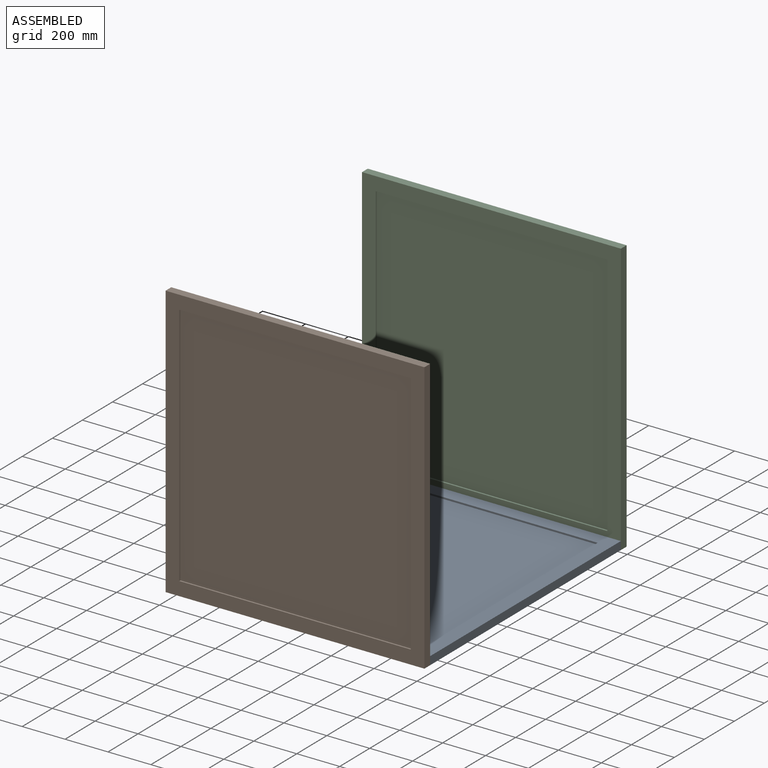
[diagram: assembled view]
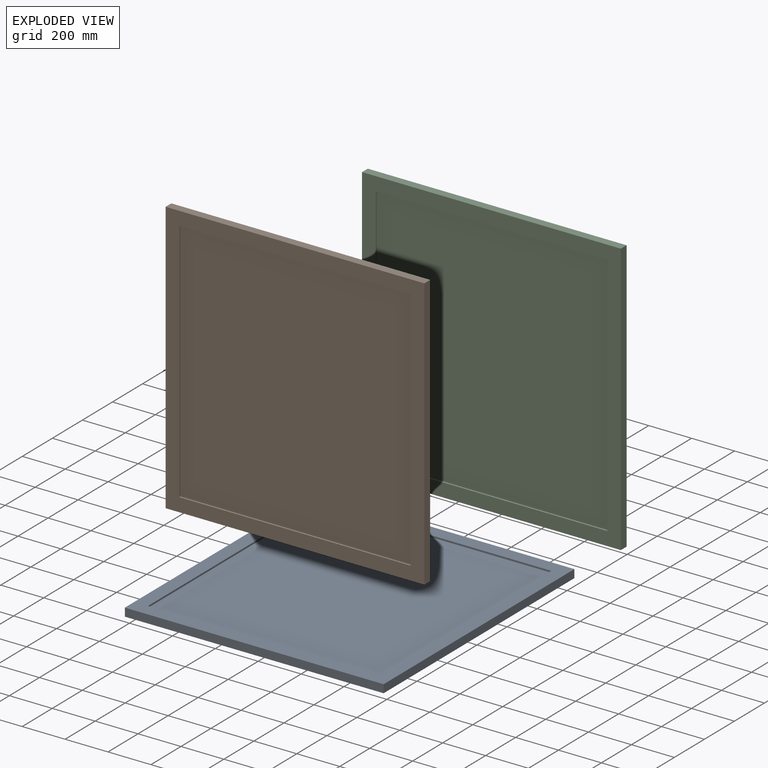
[diagram: exploded view]
GUIDED TOUR — MATED ASSEMBLY WITH SUBASSEMBLIES (Onshape document 404972811c8fb933fd3bb6b1, AutoMate assembly 404972811c8fb933fd3bb6b1_041af4c6ded8f448869e7025_c37ba7de317af0f1ff9ef1fa_default)

This assembly has 18 component occurrences arranged in 3 top-level units: 0 individual components plus 3 subassemblies (S0, S1, S2). The tour has two levels: first the top level, where each subassembly is treated as one rigid unit; then each subassembly is toured internally in its own section (nesting deeper than one subassembly level is flattened into its subassembly's section).

Components are labeled P0..P17 across the whole record; subassembly units are labeled S0..S2. A mate is a constraint between two units; its type names the relative motion it leaves free:
  PLANAR — leaves sliding in the plane through the listed point (normal = the listed direction) and rotation about that normal free.
Axis/direction vectors are unit vectors and 'through' points are millimeter coordinates, both in the assembly's world frame.

TOP-LEVEL MATES (between units; each subassembly's internal mates are listed in its own section)
  1. PLANAR "Planar 3": S1 <-> S0, direction (0.000, 0.000, -1.000) through (-804.08, -1330.18, 160.51) mm
  2. PLANAR "Planar 5": S0 <-> S2, direction (0.000, 1.000, 0.000) through (-804.08, -41.13, 179.56) mm
  3. PLANAR "Planar 4": S0 <-> S1, direction (0.000, -1.000, 0.000) through (-804.08, -1311.13, 179.56) mm
  4. PLANAR "Planar 1": S0 <-> S2, direction (1.000, 0.000, 0.000) through (-200.83, -676.13, 179.56) mm
  5. PLANAR "Planar 2": S0 <-> S1, direction (1.000, 0.000, 0.000) through (-200.83, -676.13, 179.56) mm
  6. PLANAR "Planar 6": S2 <-> S0, direction (0.000, 0.000, -1.000) through (-804.08, -22.08, 160.51) mm

TOP-LEVEL ASSEMBLY ORDER
  1. S2 — the base component [order verified]
  2. S0 [order verified]
  3. S1 [order verified]
Order-tag legend:
  [order verified] — this step's position reverses a verified removal order: the component was checked to insert without passing through the ones already placed.

Of the 18 component occurrences, 18 carry the full construction recipe — the FeatureScript program that regenerates the part's solid from scratch; the rest are supplied as boundary geometry only. Each toured unit is shown spotlighted twice — assembled, then exploded with a leader line back to its socket (green = recipe-attached component, orange = geometry-only, blue = subassembly unit; the rest desaturated gray).
NOTE — document 3 of 3 of this assembly tour. The two overview renders and the header above are repeated from document 1; the component sections below continue where the previous document stopped.
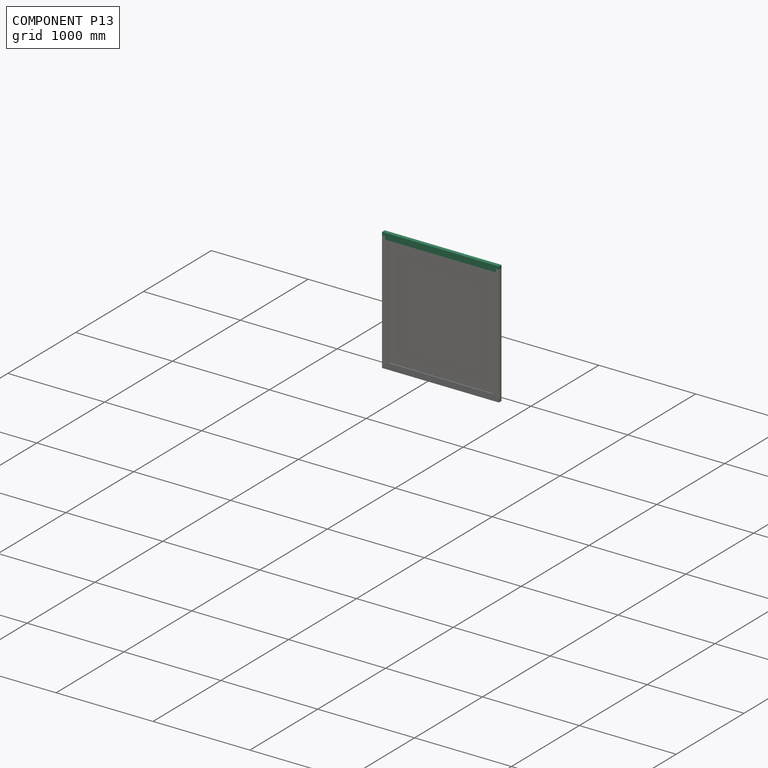
[diagram: component P13 — assembled]
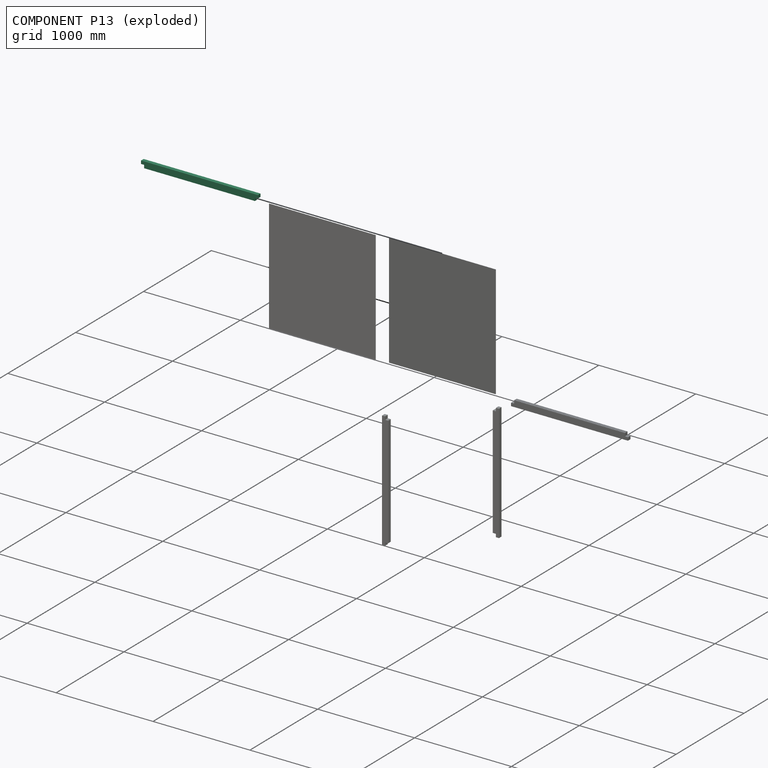
[diagram: component P13 — exploded]
COMPONENT P13 — recipe-attached (CADFS 00307400, mesh-verified: the recipe's output STEP matches this component's geometry to below the mesh-comparison resolution (tessellation chordal tolerance ~1.81 mm)).
Held by: PLANAR mate "Planar 4" to P8; PLANAR mate "Planar 6" to P8; PLANAR mate "Planar 7" to P10; PLANAR mate "Planar 10" to P7; PLANAR mate "Planar 5" to P8; PLANAR mate "Planar 9" to P10; PLANAR mate "Planar 7" to P10; PLANAR mate "Planar 9" to P10; PLANAR mate "Planar 10" to P7; PLANAR mate "Planar 5" to P8; PLANAR mate "Planar 6" to P8; PLANAR mate "Planar 4" to P8.
Construction recipe (FeatureScript — the CAD program that rebuilds this solid; sketch coordinates are in the units given by the * unit suffixes, e.g. mm):

FeatureScript 1511;
import(path : "onshape/std/geometry.fs", version : "1511.0");
import(path : "onshape/std/common.fs", version : "1511.0");
const mm = millimeter;
const VERTEX = EntityType.VERTEX;
const EDGE = EntityType.EDGE;
const FACE = EntityType.FACE;
const BODY = EntityType.BODY;
function v(x, y){return vector(x, y);}
function OD(order){return orderDisambiguation(order);}
function OSD(set){return originalSetDisambiguation(set);}
function TD(topology){return topologyDisambiguation(topology);}
function TDD(query){return trueDependencyDisambiguation(query);}
function sQuery(a, b, c) {return sketchEntityQuery(a, b, c);}

annotation { "Feature Type Name" : "Feature", "Feature Type Description" : "" }
export const myFeature = defineFeature(function(context is Context, id is Id, definition is map)
    precondition{}
    {
        {
            var Q0;
            Q0=qCreatedBy(makeId("Front.planeOp"),FACE);
            var sketch = newSketch(context, id + "F0", { "sketchPlane" : qUnion([Q0])});
            skLineSegment(sketch, "E0.bottom", {"start": v(19.05, -31.75) * mm, "end": v(-19.05, -31.75) * mm});
            skLineSegment(sketch, "E0.top", {"start": v(19.05, 31.75) * mm, "end": v(-19.05, 31.75) * mm});
            skLineSegment(sketch, "E0.left", {"start": v(19.05, -31.75) * mm, "end": v(19.05, 31.75) * mm});
            skLineSegment(sketch, "E0.right", {"start": v(-19.05, -31.75) * mm, "end": v(-19.05, 31.75) * mm});
            skPoint(sketch, "E0.middle", {"position": v(0, 0) * mm});
            skLineSegment(sketch, "E1.bottom", {"start": v(11.11, 21.59) * mm, "end": v(7.94, 21.59) * mm});
            skLineSegment(sketch, "E1.top", {"start": v(11.11, 31.75) * mm, "end": v(7.94, 31.75) * mm});
            skLineSegment(sketch, "E1.left", {"start": v(11.11, 21.59) * mm, "end": v(11.11, 31.75) * mm});
            skLineSegment(sketch, "E1.right", {"start": v(7.94, 21.59) * mm, "end": v(7.94, 31.75) * mm});
            skPoint(sketch, "E1.middle", {"position": v(9.53, 26.67) * mm});
            skLineSegment(sketch, "E2.bottom", {"start": v(-7.94, 21.59) * mm, "end": v(-11.11, 21.59) * mm});
            skLineSegment(sketch, "E2.top", {"start": v(-7.94, 31.75) * mm, "end": v(-11.11, 31.75) * mm});
            skLineSegment(sketch, "E2.left", {"start": v(-7.94, 21.59) * mm, "end": v(-7.94, 31.75) * mm});
            skLineSegment(sketch, "E2.right", {"start": v(-11.11, 21.59) * mm, "end": v(-11.11, 31.75) * mm});
            skPoint(sketch, "E2.middle", {"position": v(-9.53, 26.67) * mm});
            skSolve(sketch);
        }
        {
            var Q0;
            Q0=makeQuery(id+"F0.imprint","IMPRINT",FACE,{"disambiguationData":[TD([[makeQuery(id+"F0.imprint","IMPRINT",EDGE,{"derivedFrom":sQuery(id+"F0.wireOp",EDGE,"E0.bottom")}),-1.0]])]});
            extrude(context, id + "F1", {"entities" : qUnion([Q0]), "endBound" : BoundingType.SYMMETRIC, "depth" : 1206.5 * mm});
        }
        {
            var Q0;
            Q0=makeQuery(id+"F1.opExtrude","SWEPT_FACE",FACE,{"disambiguationData":[OSD([sQuery(id+"F0.wireOp",EDGE,"E0.right")])]});
            var sketch = newSketch(context, id + "F2", { "sketchPlane" : qUnion([Q0])});
            skLineSegment(sketch, "E3", {"start": v(0, 31.75) * mm, "end": v(0, -31.75) * mm, "construction": true});
            skPoint(sketch, "E3.endSnap0", {"position": v(0, -31.75) * mm});
            skLineSegment(sketch, "E4.bottom", {"start": v(603.25, 31.75) * mm, "end": v(571.5, 31.75) * mm});
            skLineSegment(sketch, "E4.top", {"start": v(603.25, 0) * mm, "end": v(571.5, 0) * mm});
            skLineSegment(sketch, "E4.left", {"start": v(603.25, 31.75) * mm, "end": v(603.25, 0) * mm});
            skLineSegment(sketch, "E4.right", {"start": v(571.5, 31.75) * mm, "end": v(571.5, 0) * mm});
            skLineSegment(sketch, "E5.MirrorCS", {"start": v(-603.25, 31.75) * mm, "end": v(-571.5, 31.75) * mm});
            skLineSegment(sketch, "E6.MirrorCS", {"start": v(-603.25, 0) * mm, "end": v(-571.5, 0) * mm});
            skLineSegment(sketch, "E7.MirrorCS", {"start": v(-603.25, 31.75) * mm, "end": v(-603.25, 0) * mm});
            skLineSegment(sketch, "E8.MirrorCS", {"start": v(-571.5, 31.75) * mm, "end": v(-571.5, 0) * mm});
            skSolve(sketch);
        }
        {
            var Q0;
            Q0 = qSketchRegion(id + "F2", true);
            extrude(context, id + "F3", {"entities" : qUnion([Q0]), "operationType" : NewBodyOperationType.REMOVE, "endBound" : BoundingType.THROUGH_ALL, "oppositeDirection" : true, "depth" : 25.4 * mm});
        }
    });
PROVENANCE & LICENSES
Assembly (occurrences, transforms, mates, per-part STEP geometry): AutoMate dataset, Zenodo record 7776208, CC0.
Construction recipes: CADFS (HuggingFace VladPyatov/CADFS, CC-BY-4.0, layered over the ABC dataset), FeatureScript reconstruction programs keyed by ABC model id.
Join: ABC meta listings map ABC model id -> Onshape documentId; within a shared document, parts are matched by geometric signature (bounding-box dims + volume at 0.1% relative tolerance, exact B-rep face/solid counts).
Verification: 18 of this assembly's 18 components carry a recipe attachment, and every attachment is mesh-verified: the CADFS STEP and the AutoMate member STEP were compared as meshes in their shared local frame (symmetric sampled-point-to-mesh distance); worst across the 18 attachments: below the mesh-comparison resolution (tessellation chordal tolerance ~2.4 mm) on a 1601 mm part.
Renders: orthographic iso camera (az 35 / el 25); the floor grid conveys scale (grid pitch printed in each image; no ruler). In the exploded view each component is displaced by its stored offset vector: the offsets alone carry the explosion direction (mate normal/axis signs are not orientation cues and do not encode it), and separation distances are assigned per mate-chain, not proportionally to assembly-order depth.
